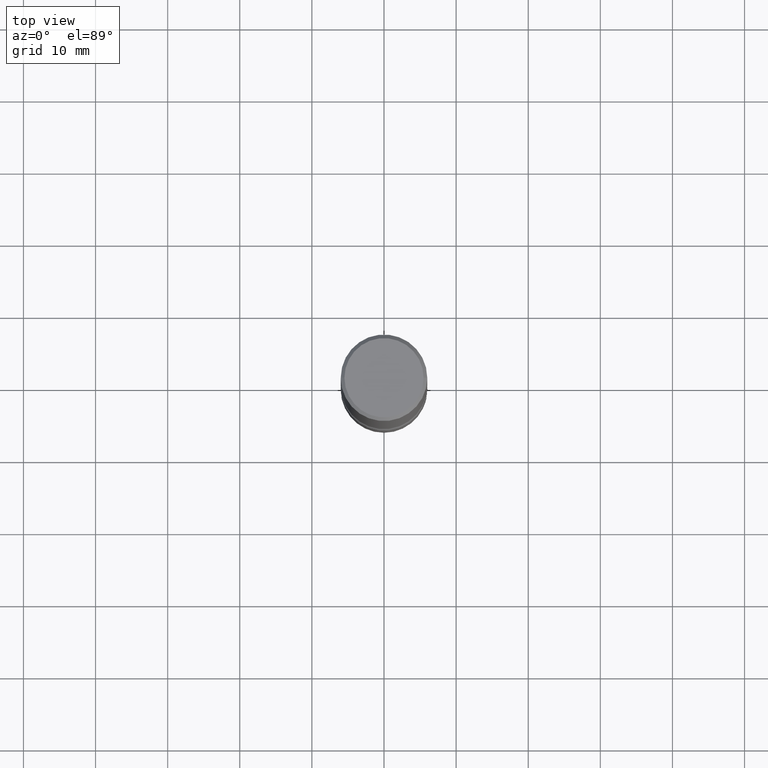
[diagram: clean part render]
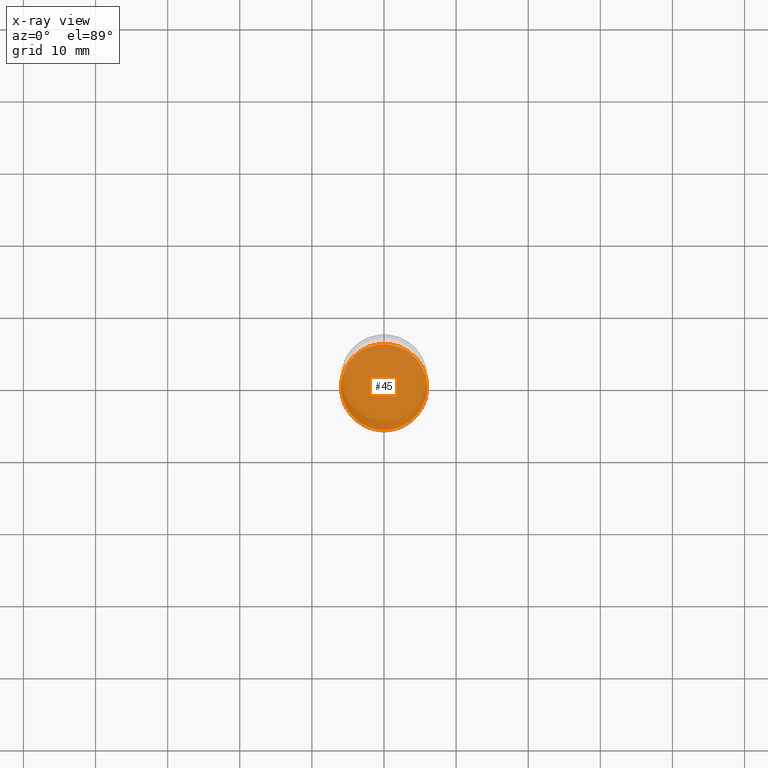
[diagram: x-ray — body ghosted, one internal face saturated and labeled with its STEP entity id]
A machine part, top view, then the same camera in x-ray: the body is ghosted and one INTERNAL B-rep face — a face not visible from any outside direction — is saturated and labeled: STEP entity #45.
In plain terms, the highlighted planar face has unit normal (0, -0, -1).
Its self-contained STEP definition (entity closure, byte-faithful):
#1 = ORIENTED_EDGE ( 'NONE', *, *, #159, .T. ) ;
#22 = DIRECTION ( 'NONE',  ( 2.438088387897960049E-29, -3.491481338843145188E-15, -1.000000000000000000 ) ) ;
#45 = ADVANCED_FACE ( 'NONE', ( #380 ), #506, .T. ) ;
#63 = EDGE_LOOP ( 'NONE', ( #1, #400 ) ) ;
#159 = EDGE_CURVE ( 'NONE', #409, #486, #201, .T. ) ;
#201 = CIRCLE ( 'NONE', #558, 0.2356999999999994377 ) ;
#208 = DIRECTION ( 'NONE',  ( -1.000000000000000000, 6.982962677686265922E-15, -4.876176775795935793E-29 ) ) ;
#210 = DIRECTION ( 'NONE',  ( 2.445468806185136597E-29, -3.491481338843145583E-15, -1.000000000000000000 ) ) ;
#225 = DIRECTION ( 'NONE',  ( -1.000000000000000000, 6.982962677686266711E-15, 0.000000000000000000 ) ) ;
#287 = CARTESIAN_POINT ( 'NONE',  ( 1.645884303130722346E-15, 0.2356999999999890016, -2.992100000000001092 ) ) ;
#342 = CARTESIAN_POINT ( 'NONE',  ( -0.2356999999999994377, -8.770258186335069950E-15, -2.992100000000000204 ) ) ;
#343 = DIRECTION ( 'NONE',  ( -1.000000000000000000, 6.982962677686266711E-15, 0.000000000000000000 ) ) ;
#358 = EDGE_CURVE ( 'NONE', #486, #409, #469, .T. ) ;
#380 = FACE_OUTER_BOUND ( 'NONE', #63, .T. ) ;
#400 = ORIENTED_EDGE ( 'NONE', *, *, #358, .T. ) ;
#409 = VERTEX_POINT ( 'NONE', #425 ) ;
#425 = CARTESIAN_POINT ( 'NONE',  ( 0.2356999999999994377, -1.209335644194287961E-14, -2.992100000000000204 ) ) ;
#430 = CARTESIAN_POINT ( 'NONE',  ( 7.317087214986547114E-29, -1.044686131395257581E-14, -2.992100000000000204 ) ) ;
#441 = AXIS2_PLACEMENT_3D ( 'NONE', #287, #22, #208 ) ;
#456 = CARTESIAN_POINT ( 'NONE',  ( 7.317087214986547114E-29, -1.044686131395257581E-14, -2.992100000000000204 ) ) ;
#469 = CIRCLE ( 'NONE', #521, 0.2356999999999994377 ) ;
#486 = VERTEX_POINT ( 'NONE', #342 ) ;
#506 = PLANE ( 'NONE',  #441 ) ;
#521 = AXIS2_PLACEMENT_3D ( 'NONE', #430, #210, #343 ) ;
#558 = AXIS2_PLACEMENT_3D ( 'NONE', #456, #562, #225 ) ;
#562 = DIRECTION ( 'NONE',  ( 2.445468806185136597E-29, -3.491481338843145583E-15, -1.000000000000000000 ) ) ;